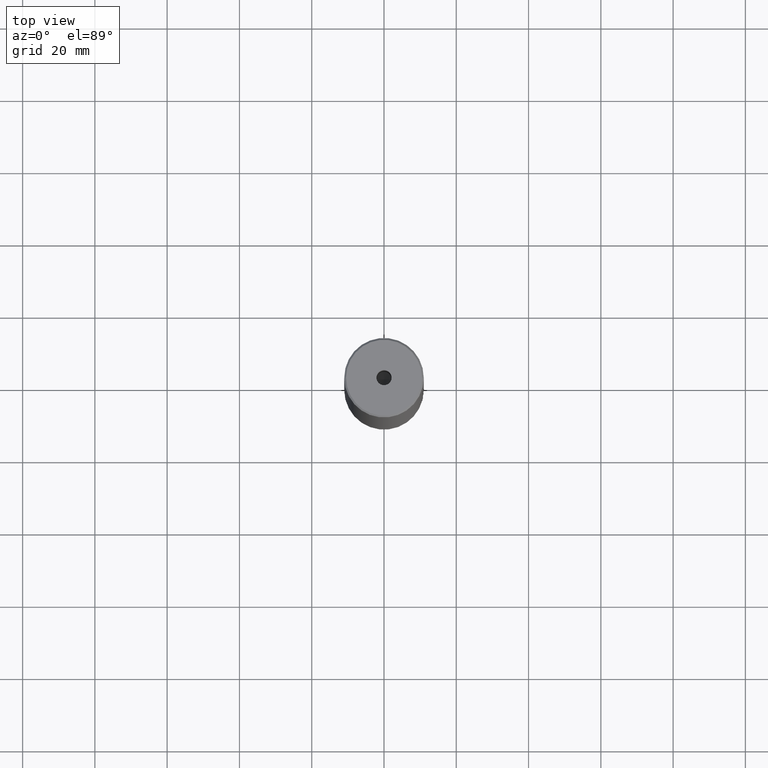
[diagram: clean part render]
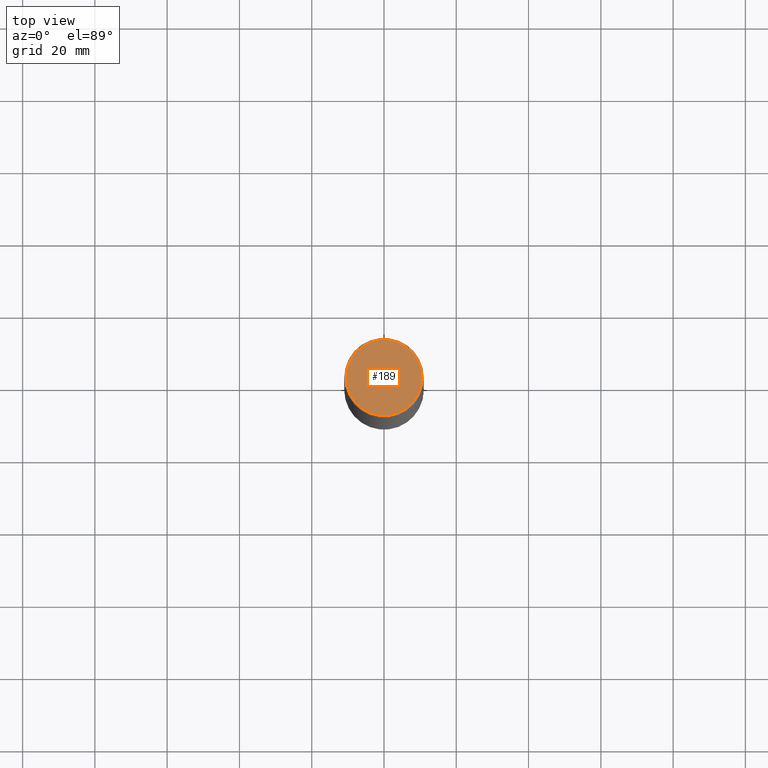
[diagram: same view with one face highlighted and labeled with its STEP entity id]
A machine part, top view. The second image highlights one B-rep face of the part: STEP entity #189.
In plain terms, the highlighted planar face has unit normal (0, -0, 1).
Its self-contained STEP definition (entity closure, byte-faithful):
#5 = VERTEX_POINT ( 'NONE', #103 ) ;
#21 = EDGE_LOOP ( 'NONE', ( #371, #124 ) ) ;
#25 = EDGE_CURVE ( 'NONE', #82, #560, #97, .T. ) ;
#29 = VERTEX_POINT ( 'NONE', #424 ) ;
#30 = CARTESIAN_POINT ( 'NONE',  ( 0.000000000000000000, 0.000000000000000000, 0.000000000000000000 ) ) ;
#33 = EDGE_LOOP ( 'NONE', ( #120, #191 ) ) ;
#46 = CARTESIAN_POINT ( 'NONE',  ( 0.000000000000000000, 0.000000000000000000, -1.990051048614449116E-16 ) ) ;
#57 = DIRECTION ( 'NONE',  ( -0.000000000000000000, -0.000000000000000000, 1.000000000000000000 ) ) ;
#75 = FACE_BOUND ( 'NONE', #21, .T. ) ;
#82 = VERTEX_POINT ( 'NONE', #183 ) ;
#86 = DIRECTION ( 'NONE',  ( 1.000000000000000000, 0.000000000000000000, 0.000000000000000000 ) ) ;
#90 = DIRECTION ( 'NONE',  ( -0.000000000000000000, -0.000000000000000000, 1.000000000000000000 ) ) ;
#97 = CIRCLE ( 'NONE', #311, 10.50000000000000888 ) ;
#103 = CARTESIAN_POINT ( 'NONE',  ( -2.099999999999998757, 2.571758278209440478E-16, -1.990051048614449116E-16 ) ) ;
#110 = AXIS2_PLACEMENT_3D ( 'NONE', #46, #417, #185 ) ;
#120 = ORIENTED_EDGE ( 'NONE', *, *, #25, .T. ) ;
#124 = ORIENTED_EDGE ( 'NONE', *, *, #384, .F. ) ;
#173 = DIRECTION ( 'NONE',  ( 1.000000000000000000, 0.000000000000000000, 0.000000000000000000 ) ) ;
#183 = CARTESIAN_POINT ( 'NONE',  ( -10.50000000000000888, 0.000000000000000000, 0.000000000000000000 ) ) ;
#185 = DIRECTION ( 'NONE',  ( 1.000000000000000000, 0.000000000000000000, 0.000000000000000000 ) ) ;
#189 = ADVANCED_FACE ( 'NONE', ( #75, #255 ), #442, .T. ) ;
#191 = ORIENTED_EDGE ( 'NONE', *, *, #465, .T. ) ;
#195 = CIRCLE ( 'NONE', #523, 2.099999999999998757 ) ;
#214 = DIRECTION ( 'NONE',  ( 0.000000000000000000, -0.000000000000000000, 1.000000000000000000 ) ) ;
#239 = DIRECTION ( 'NONE',  ( 1.000000000000000000, 0.000000000000000000, 0.000000000000000000 ) ) ;
#255 = FACE_OUTER_BOUND ( 'NONE', #33, .T. ) ;
#311 = AXIS2_PLACEMENT_3D ( 'NONE', #470, #57, #239 ) ;
#317 = CARTESIAN_POINT ( 'NONE',  ( 10.50000000000000888, 1.316495309083405209E-15, 0.000000000000000000 ) ) ;
#337 = CIRCLE ( 'NONE', #378, 10.50000000000000888 ) ;
#371 = ORIENTED_EDGE ( 'NONE', *, *, #569, .F. ) ;
#378 = AXIS2_PLACEMENT_3D ( 'NONE', #499, #90, #86 ) ;
#384 = EDGE_CURVE ( 'NONE', #5, #29, #195, .T. ) ;
#393 = AXIS2_PLACEMENT_3D ( 'NONE', #30, #214, #477 ) ;
#417 = DIRECTION ( 'NONE',  ( -0.000000000000000000, -0.000000000000000000, 1.000000000000000000 ) ) ;
#424 = CARTESIAN_POINT ( 'NONE',  ( 2.099999999999998757, 0.000000000000000000, -1.990051048614449116E-16 ) ) ;
#436 = CIRCLE ( 'NONE', #110, 2.099999999999998757 ) ;
#442 = PLANE ( 'NONE',  #393 ) ;
#465 = EDGE_CURVE ( 'NONE', #560, #82, #337, .T. ) ;
#470 = CARTESIAN_POINT ( 'NONE',  ( 0.000000000000000000, 0.000000000000000000, 0.000000000000000000 ) ) ;
#477 = DIRECTION ( 'NONE',  ( 1.000000000000000000, 0.000000000000000000, 0.000000000000000000 ) ) ;
#490 = CARTESIAN_POINT ( 'NONE',  ( 0.000000000000000000, 0.000000000000000000, -1.990051048614449116E-16 ) ) ;
#499 = CARTESIAN_POINT ( 'NONE',  ( 0.000000000000000000, 0.000000000000000000, 0.000000000000000000 ) ) ;
#523 = AXIS2_PLACEMENT_3D ( 'NONE', #490, #576, #173 ) ;
#560 = VERTEX_POINT ( 'NONE', #317 ) ;
#569 = EDGE_CURVE ( 'NONE', #29, #5, #436, .T. ) ;
#576 = DIRECTION ( 'NONE',  ( -0.000000000000000000, -0.000000000000000000, 1.000000000000000000 ) ) ;